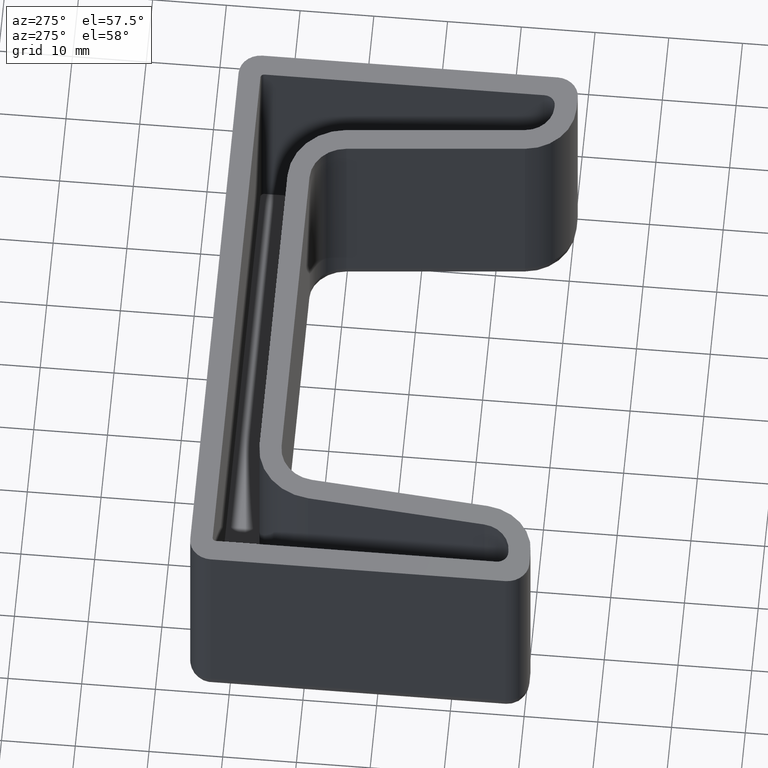
[diagram: clean part render]
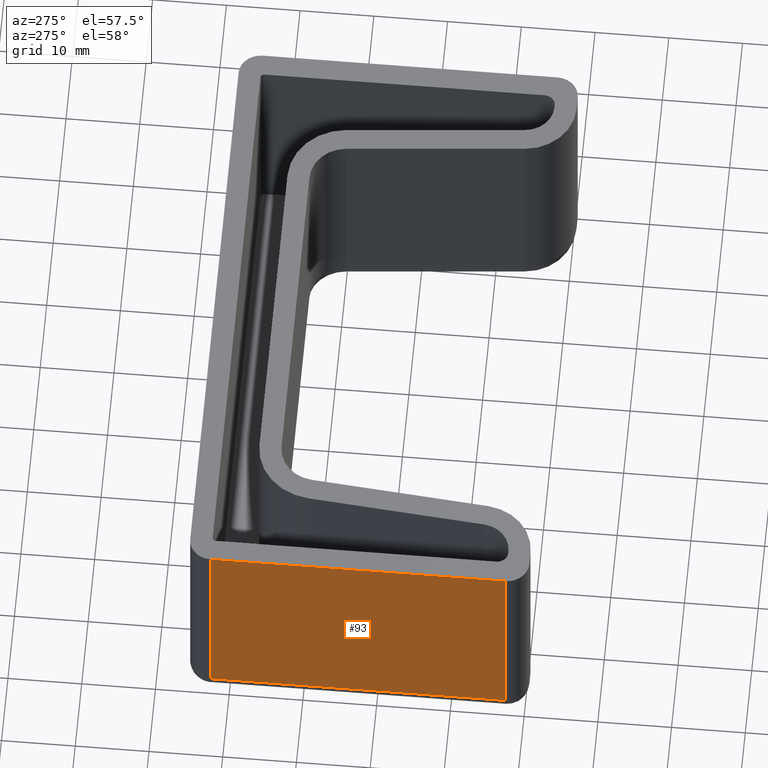
[diagram: same view with one face highlighted and labeled with its STEP entity id]
A machine part, auxiliary view. The second image highlights one B-rep face of the part: STEP entity #93.
In plain terms, the highlighted planar face has unit normal (1, -0, -0).
Its self-contained STEP definition (entity closure, byte-faithful):
#93 = ADVANCED_FACE( '', ( #164 ), #165, .F. );
#164 = FACE_OUTER_BOUND( '', #267, .T. );
#165 = PLANE( '', #268 );
#267 = EDGE_LOOP( '', ( #495, #496, #497, #498 ) );
#268 = AXIS2_PLACEMENT_3D( '', #499, #500, #501 );
#495 = ORIENTED_EDGE( '', *, *, #811, .F. );
#496 = ORIENTED_EDGE( '', *, *, #762, .T. );
#497 = ORIENTED_EDGE( '', *, *, #810, .F. );
#498 = ORIENTED_EDGE( '', *, *, #812, .F. );
#499 = CARTESIAN_POINT( '', ( -40.5000000000000, -37.5000000000000, -30.0000000000000 ) );
#500 = DIRECTION( '', ( 1.00000000000000, -1.11022302462516E-016, -1.22460635382238E-016 ) );
#501 = DIRECTION( '', ( 1.22460635382238E-016, 1.22460635382238E-016, 1.00000000000000 ) );
#762 = EDGE_CURVE( '', #885, #910, #912, .T. );
#810 = EDGE_CURVE( '', #992, #910, #994, .T. );
#811 = EDGE_CURVE( '', #885, #995, #996, .T. );
#812 = EDGE_CURVE( '', #995, #992, #997, .T. );
#885 = VERTEX_POINT( '', #1095 );
#910 = VERTEX_POINT( '', #1126 );
#912 = LINE( '', #1128, #1129 );
#992 = VERTEX_POINT( '', #1237 );
#994 = LINE( '', #1239, #1240 );
#995 = VERTEX_POINT( '', #1241 );
#996 = LINE( '', #1242, #1243 );
#997 = LINE( '', #1244, #1245 );
#1095 = CARTESIAN_POINT( '', ( -40.5000000000000, -37.5000000000000, 8.06172077878753E-015 ) );
#1126 = CARTESIAN_POINT( '', ( -40.5000000000000, 2.50000000000000, 3.16329536349802E-015 ) );
#1128 = CARTESIAN_POINT( '', ( -40.5000000000000, -27.5000000000000, 6.83711442496515E-015 ) );
#1129 = VECTOR( '', #1382, 1000.00000000000 );
#1237 = CARTESIAN_POINT( '', ( -40.5000000000000, 2.49999999999999, -30.0000000000000 ) );
#1239 = CARTESIAN_POINT( '', ( -40.5000000000000, 2.50000000000000, -30.0000000000000 ) );
#1240 = VECTOR( '', #1468, 1000.00000000000 );
#1241 = CARTESIAN_POINT( '', ( -40.5000000000000, -37.5000000000000, -30.0000000000000 ) );
#1242 = CARTESIAN_POINT( '', ( -40.5000000000000, -37.5000000000000, -30.0000000000000 ) );
#1243 = VECTOR( '', #1469, 1000.00000000000 );
#1244 = CARTESIAN_POINT( '', ( -40.5000000000000, -27.5000000000000, -30.0000000000000 ) );
#1245 = VECTOR( '', #1470, 1000.00000000000 );
#1382 = DIRECTION( '', ( 1.11022302462516E-016, 1.00000000000000, -1.22460635382238E-016 ) );
#1468 = DIRECTION( '', ( 1.22460635382238E-016, 1.22460635382238E-016, 1.00000000000000 ) );
#1469 = DIRECTION( '', ( -1.22460635382238E-016, -1.22460635382238E-016, -1.00000000000000 ) );
#1470 = DIRECTION( '', ( 1.11022302462516E-016, 1.00000000000000, -1.22460635382238E-016 ) );